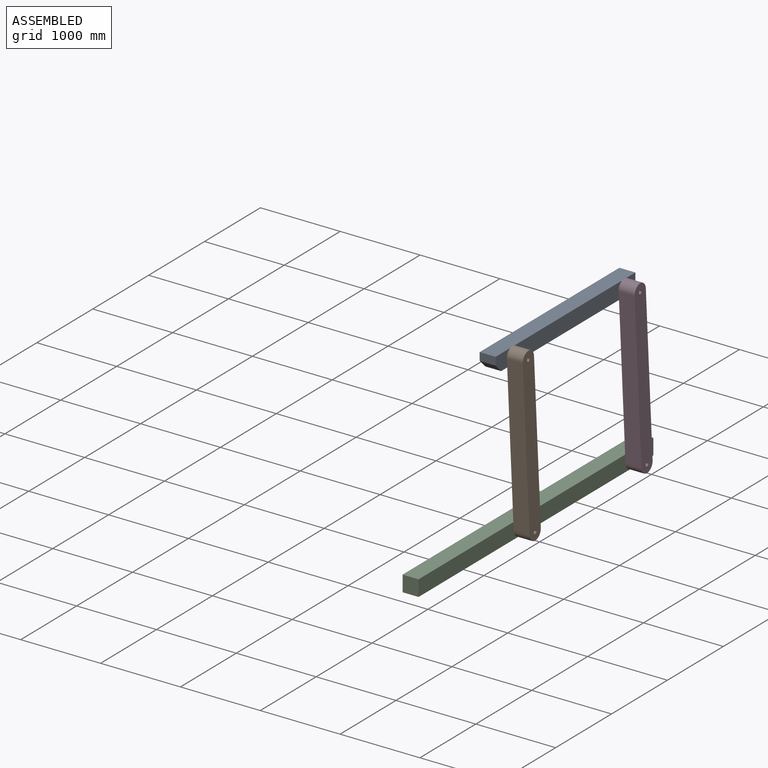
[diagram: assembled view]
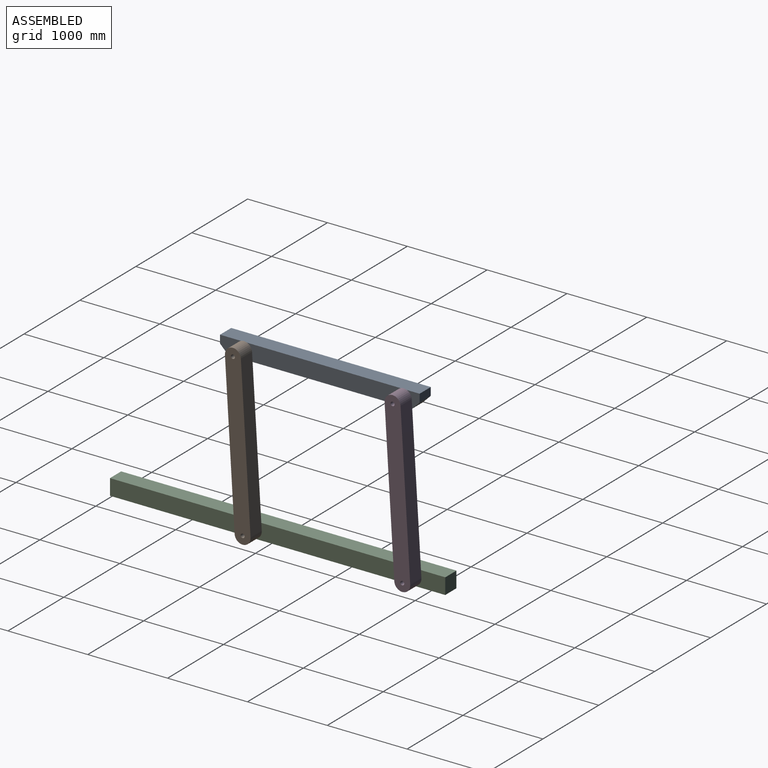
[diagram: assembled view, second angle]
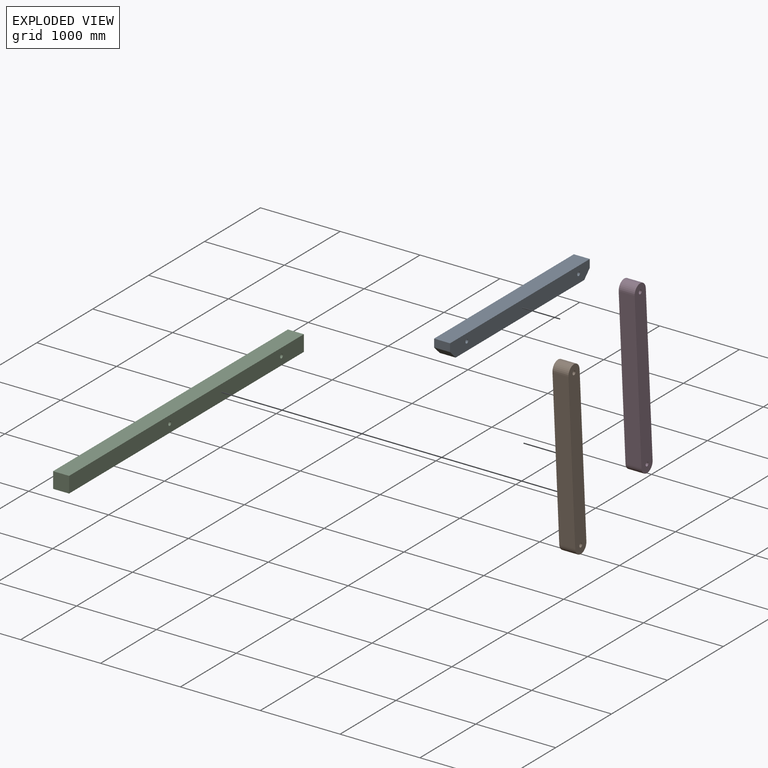
[diagram: exploded view]
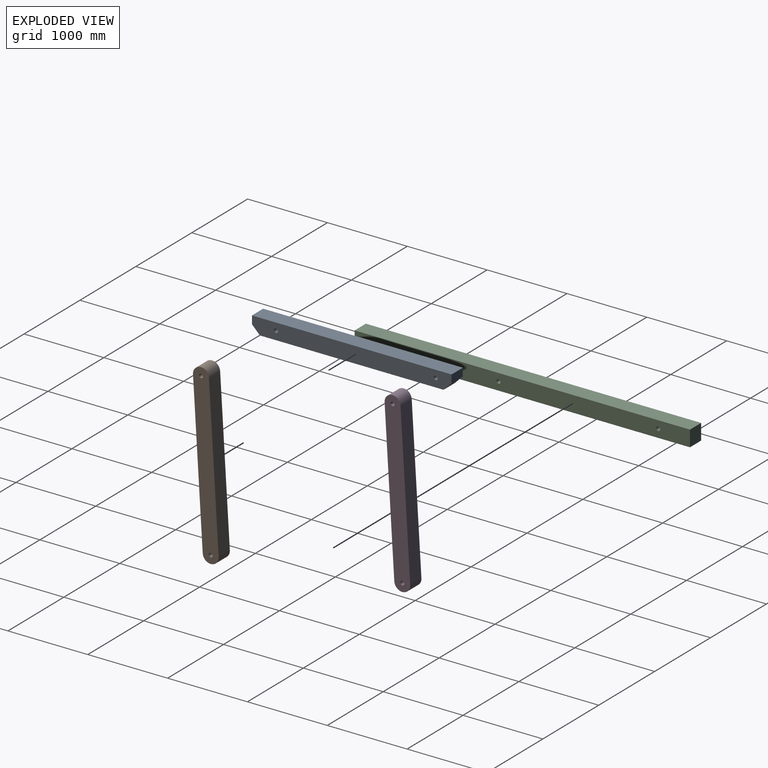
[diagram: exploded view, second angle]
ASSEMBLY  parts=4 mates=4
PART A: 10 faces, bbox 200x2500x200 mm
  f0: plane 2500x200mm, normal (0,0,1), area 500000mm2, adj f2,f3,f4,f7
  f1: plane 2300x200mm, normal (0,0,-1), area 460000mm2, adj f2,f3,f8,f9
  f2: plane 2500x200mm, normal (1,0,0), area 486073mm2, adj f0,f1,f4,f5,f6,f7,f8,f9
  f3: plane 2500x200mm, normal (-1,0,0), area 486073mm2, adj f0,f1,f4,f5,f6,f7,f8,f9
  f4: plane 200x100mm, normal (0,1,0), area 20000mm2, adj f0,f2,f3,f9
  f5: cylinder r=25mm len=200mm, axis (-1,0,0), area 31415.9mm2, adj f2,f3
  f6: cylinder r=25mm len=200mm, axis (-1,0,0), area 31415.9mm2, adj f2,f3
  f7: plane 200x100mm, normal (0,-1,0), area 20000mm2, adj f0,f2,f3,f8
  f8: plane 200x100mm, normal (0,-0.71,-0.71), area 28284.3mm2, adj f1,f2,f3,f7
  f9: plane 200x100mm, normal (0,0.71,-0.71), area 28284.3mm2, adj f1,f2,f3,f4
PART B: 8 faces, bbox 200x200x2200 mm
  f0: plane 2000x200mm, normal (0,1,0), area 400000mm2, adj f2,f3,f6,f7
  f1: plane 2000x200mm, normal (0,-1,0), area 400000mm2, adj f2,f3,f6,f7
  f2: plane 2200x200mm, normal (1,0,0), area 427488.9mm2, adj f0,f1,f4,f5,f6,f7
  f3: plane 2200x200mm, normal (-1,0,0), area 427488.9mm2, adj f0,f1,f4,f5,f6,f7
  f4: cylinder r=25mm len=200mm, axis (-1,0,0), area 31415.9mm2, adj f2,f3
  f5: cylinder r=25mm len=200mm, axis (-1,0,0), area 31415.9mm2, adj f2,f3
  f6: cylinder r=100mm len=200mm, axis (-1,0,0), area 62831.9mm2, adj f0,f1,f2,f3
  f7: cylinder r=100mm len=200mm, axis (1,0,0), area 62831.9mm2, adj f0,f1,f2,f3
PART C: 8 faces, bbox 200x4200x200 mm
  f0: plane 4200x200mm, normal (0,0,1), area 840000mm2, adj f1,f3,f4,f7
  f1: plane 200x200mm, normal (0,-1,0), area 40000mm2, adj f0,f2,f3,f4
  f2: plane 4200x200mm, normal (0,0,-1), area 840000mm2, adj f1,f3,f4,f7
  f3: plane 4200x200mm, normal (1,0,0), area 836073mm2, adj f0,f1,f2,f5,f6,f7
  f4: plane 4200x200mm, normal (-1,0,0), area 836073mm2, adj f0,f1,f2,f5,f6,f7
  f5: cylinder r=25mm len=200mm, axis (-1,0,0), area 31415.9mm2, adj f3,f4
  f6: cylinder r=25mm len=200mm, axis (-1,0,0), area 31415.9mm2, adj f3,f4
  f7: plane 200x200mm, normal (0,1,0), area 40000mm2, adj f0,f2,f3,f4
PART D: 8 faces, bbox 200x200x2200 mm
  f0: plane 2000x200mm, normal (0,1,0), area 400000mm2, adj f2,f3,f6,f7
  f1: plane 2000x200mm, normal (0,-1,0), area 400000mm2, adj f2,f3,f6,f7
  f2: plane 2200x200mm, normal (1,0,0), area 427488.9mm2, adj f0,f1,f4,f5,f6,f7
  f3: plane 2200x200mm, normal (-1,0,0), area 427488.9mm2, adj f0,f1,f4,f5,f6,f7
  f4: cylinder r=25mm len=200mm, axis (-1,0,0), area 31415.9mm2, adj f2,f3
  f5: cylinder r=25mm len=200mm, axis (-1,0,0), area 31415.9mm2, adj f2,f3
  f6: cylinder r=100mm len=200mm, axis (-1,0,0), area 62831.9mm2, adj f0,f1,f2,f3
  f7: cylinder r=100mm len=200mm, axis (-1,0,0), area 62831.9mm2, adj f0,f1,f2,f3
PLACE A t=(-362.04,-1995.63,436.99)mm
PLACE B rot(axis=(1,0,0),3.5deg) t=(-162.04,-937.67,929.39)mm
PLACE C t=(-362.04,-2448.61,1118.22)mm fixed
PLACE D rot(axis=(1,0,0),3.5deg) t=(-162.04,734.91,892.88)mm
MATE revolute D.f4 <-> A.f6  axis (-1,0,0) through (-162.04,744.06,2950.1)mm
MATE revolute C.f5 <-> D.f5  axis (1,0,0) through (-162.04,865.64,953.8)mm
MATE revolute A.f5 <-> B.f4  axis (1,0,0) through (-162.04,-1255.94,2950.1)mm
MATE revolute B.f5 <-> C.f6  axis (-1,0,0) through (-162.04,-1134.36,953.8)mm
